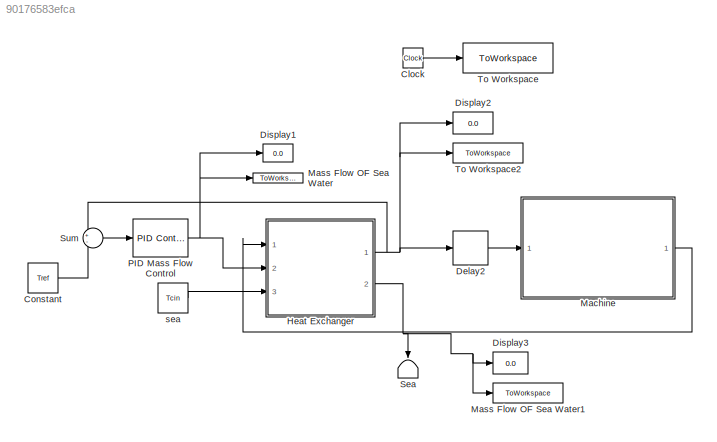
MODEL slx_90176583efca
KIND model
CONFIG AbsTol = auto
CONFIG EnableMultiTasking = off
CONFIG FixedStep = 0.01
CONFIG MaxStep = auto
CONFIG MinStep = auto
CONFIG RelTol = 1e-3
CONFIG SampleTimeConstraint = Unconstrained
CONFIG SolverName = ode4
CONFIG StartTime = 0.0
CONFIG StopTime = 1000.0
BLOCK [Clock] Clock
BLOCK [Constant] Constant
  Value = Tref
BLOCK [Delay] Delay2
  DelayLength = 1
  InitialCondition = Tenv
  InputPortMap = u0
  Ports = [1, 1]
BLOCK [Display] Display1
  Decimation = 1
  Ports = [1]
BLOCK [Display] Display2
  Decimation = 1
  Ports = [1]
BLOCK [Display] Display3
  Decimation = 1
  Ports = [1]
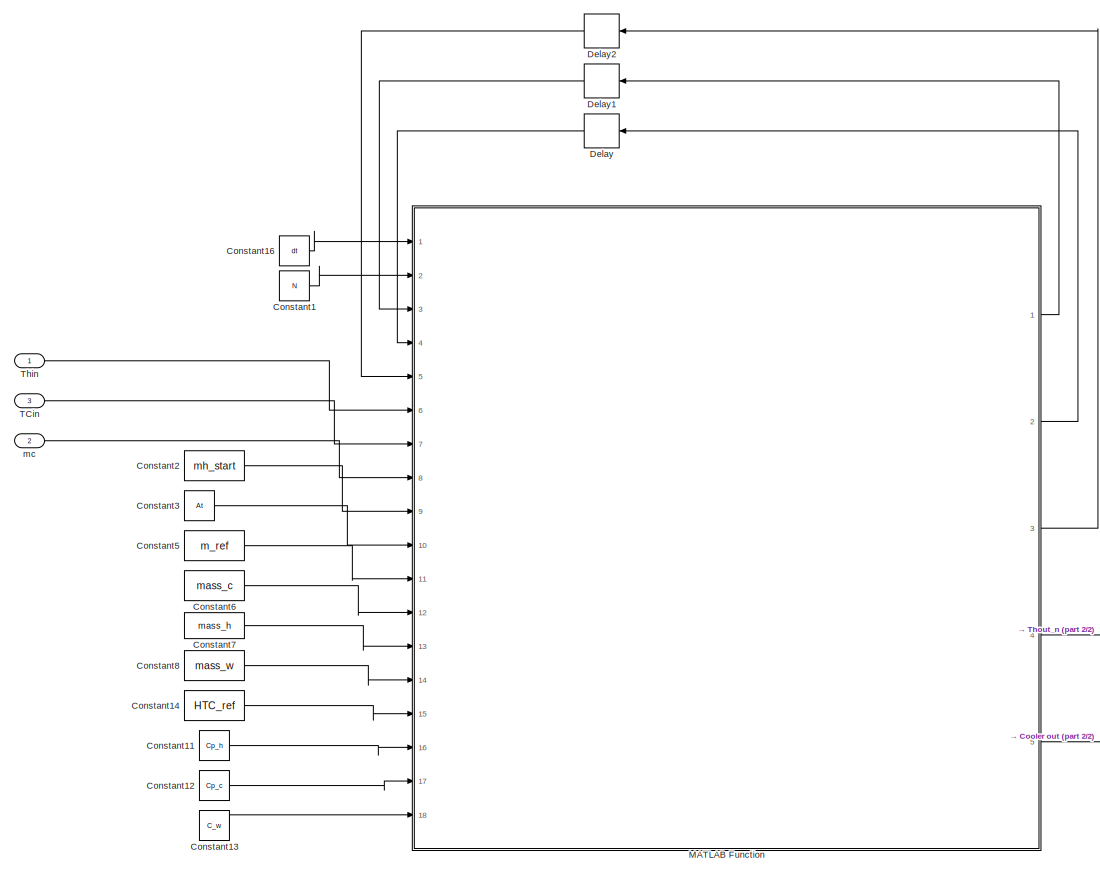
[diagram: Heat Exchanger - part 1/2, most of the canvas]
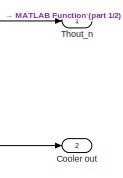
[diagram: Heat Exchanger - part 2/2, bottom right region]
BLOCK [SubSystem] Heat Exchanger
  Ports = [3, 2]
  RequestExecContextInheritance = off
BLOCK [Constant] Heat Exchanger/Constant1
  Value = N
BLOCK [Constant] Heat Exchanger/Constant11
  Value = Cp_h
BLOCK [Constant] Heat Exchanger/Constant12
  Value = Cp_c
BLOCK [Constant] Heat Exchanger/Constant13
  Value = C_w
BLOCK [Constant] Heat Exchanger/Constant14
  Value = HTC_ref
BLOCK [Constant] Heat Exchanger/Constant16
  Value = dt
BLOCK [Constant] Heat Exchanger/Constant2
  Value = mh_start
BLOCK [Constant] Heat Exchanger/Constant3
  Value = At
BLOCK [Constant] Heat Exchanger/Constant5
  Value = m_ref
BLOCK [Constant] Heat Exchanger/Constant6
  Value = mass_c
BLOCK [Constant] Heat Exchanger/Constant7
  Value = mass_h
BLOCK [Constant] Heat Exchanger/Constant8
  Value = mass_w
BLOCK [Outport] Heat Exchanger/Cooler out
  Port = 2
BLOCK [Delay] Heat Exchanger/Delay
  DelayLength = 1
  InitialCondition = Tc_init
  InputPortMap = u0
  NameLocation = top
  Ports = [1, 1]
BLOCK [Delay] Heat Exchanger/Delay1
  DelayLength = 1
  InitialCondition = Th_init
  InputPortMap = u0
  NameLocation = top
  Ports = [1, 1]
BLOCK [Delay] Heat Exchanger/Delay2
  DelayLength = 1
  InitialCondition = Tw_init
  InputPortMap = u0
  NameLocation = top
  Ports = [1, 1]
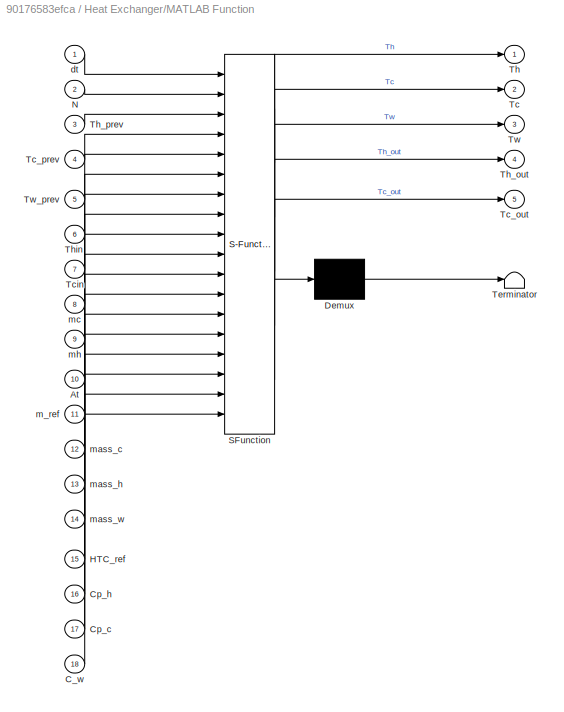
BLOCK [SubSystem] Heat Exchanger/MATLAB Function
  ErrorFcn = Stateflow.Translate.translate
  PermitHierarchicalResolution = ExplicitOnly
  Ports = [18, 5]
  RequestExecContextInheritance = off
  SFBlockType = MATLAB Function
  TreatAsAtomicUnit = on
BLOCK [Demux] Heat Exchanger/MATLAB Function/ Demux 
  Outputs = 1
  Ports = [1, 1]
BLOCK [S-Function] Heat Exchanger/MATLAB Function/ SFunction 
  EnableBusSupport = on
  FunctionName = sf_sfun
  PortCounts = [18 6]
  Ports = [18, 6]
  SFcnIsStateOwnerBlock = off
  SFunctionDeploymentMode = off
  Tag = Stateflow S-Function 2
BLOCK [Terminator] Heat Exchanger/MATLAB Function/ Terminator 
BLOCK [Inport] Heat Exchanger/MATLAB Function/At
  Port = 10
BLOCK [Inport] Heat Exchanger/MATLAB Function/C_w
  Port = 18
BLOCK [Inport] Heat Exchanger/MATLAB Function/Cp_c
  Port = 17
BLOCK [Inport] Heat Exchanger/MATLAB Function/Cp_h
  Port = 16
BLOCK [Inport] Heat Exchanger/MATLAB Function/HTC_ref
  Port = 15
BLOCK [Inport] Heat Exchanger/MATLAB Function/N
  Port = 2
BLOCK [Outport] Heat Exchanger/MATLAB Function/Tc
  Port = 2
BLOCK [Outport] Heat Exchanger/MATLAB Function/Tc_out
  Port = 5
BLOCK [Inport] Heat Exchanger/MATLAB Function/Tc_prev
  Port = 4
BLOCK [Inport] Heat Exchanger/MATLAB Function/Tcin
  Port = 7
BLOCK [Outport] Heat Exchanger/MATLAB Function/Th
BLOCK [Outport] Heat Exchanger/MATLAB Function/Th_out
  Port = 4
BLOCK [Inport] Heat Exchanger/MATLAB Function/Th_prev
  Port = 3
BLOCK [Inport] Heat Exchanger/MATLAB Function/Thin
  Port = 6
BLOCK [Outport] Heat Exchanger/MATLAB Function/Tw
  Port = 3
BLOCK [Inport] Heat Exchanger/MATLAB Function/Tw_prev
  Port = 5
BLOCK [Inport] Heat Exchanger/MATLAB Function/dt
BLOCK [Inport] Heat Exchanger/MATLAB Function/m_ref
  Port = 11
BLOCK [Inport] Heat Exchanger/MATLAB Function/mass_c
  Port = 12
BLOCK [Inport] Heat Exchanger/MATLAB Function/mass_h
  Port = 13
BLOCK [Inport] Heat Exchanger/MATLAB Function/mass_w
  Port = 14
BLOCK [Inport] Heat Exchanger/MATLAB Function/mc
  Port = 8
BLOCK [Inport] Heat Exchanger/MATLAB Function/mh
  Port = 9
BLOCK [Inport] Heat Exchanger/TCin
  Port = 3
BLOCK [Inport] Heat Exchanger/Thin
BLOCK [Outport] Heat Exchanger/Thout_n
BLOCK [Inport] Heat Exchanger/mc
  Port = 2
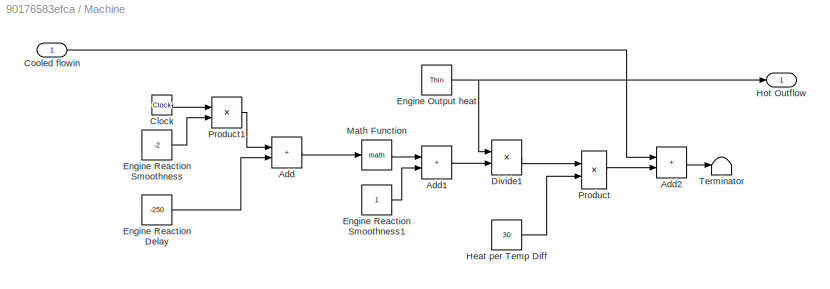
BLOCK [SubSystem] Machine
  Ports = [1, 1]
  RequestExecContextInheritance = off
BLOCK [Sum] Machine/Add
  IconShape = rectangular
  Ports = [2, 1]
BLOCK [Sum] Machine/Add1
  IconShape = rectangular
  Ports = [2, 1]
BLOCK [Sum] Machine/Add2
  IconShape = rectangular
  Ports = [2, 1]
BLOCK [Clock] Machine/Clock
BLOCK [Inport] Machine/Cooled flowin
BLOCK [Product] Machine/Divide1
  Inputs = */
  Ports = [2, 1]
BLOCK [Constant] Machine/Engine Output heat
  Value = Thin
BLOCK [Constant] Machine/Engine Reaction Delay
  Value = -250
BLOCK [Constant] Machine/Engine Reaction Smoothness
  Value = -2
BLOCK [Constant] Machine/Engine Reaction Smoothness1
BLOCK [Constant] Machine/Heat per Temp Diff
  Value = 30
BLOCK [Outport] Machine/Hot Outflow
BLOCK [Math] Machine/Math Function
  Ports = [1, 1]
BLOCK [Product] Machine/Product
  Inputs = */
  Ports = [2, 1]
BLOCK [Product] Machine/Product1
  Ports = [2, 1]
BLOCK [Terminator] Machine/Terminator
BLOCK [ToWorkspace] Mass Flow OF Sea Water
  FixptAsFi = on
  MaxDataPoints = inf
  Ports = [1]
  SampleTime = -1
  VariableName = mh_in
BLOCK [ToWorkspace] Mass Flow OF Sea Water1
  FixptAsFi = on
  MaxDataPoints = inf
  Ports = [1]
  SampleTime = -1
  VariableName = Tc_out
BLOCK [Reference] PID Mass Flow Control  REF=pid_lib/PID Controller
  Ports = [1, 1]
  SourceBlock = pid_lib/PID Controller
  SourceProductBaseCode = SL
  SourceType = PID 1dof
BLOCK [Terminator] Sea
  NameLocation = left
BLOCK [Sum] Sum
  Inputs = +-
  Ports = [2, 1]
BLOCK [ToWorkspace] To Workspace
  FixptAsFi = on
  MaxDataPoints = inf
  Ports = [1]
  SampleTime = -1
  VariableName = t
BLOCK [ToWorkspace] To Workspace2
  FixptAsFi = on
  MaxDataPoints = inf
  Ports = [1]
  SampleTime = -1
  VariableName = Th_out
BLOCK [Constant] sea
  Value = Tcin
LINE Clock:1 -> To Workspace:1
LINE Constant:1 -> Sum:2
LINE Delay2:1 -> Machine:1
LINE Heat Exchanger/Constant11:1 -> Heat Exchanger/MATLAB Function:16
LINE Heat Exchanger/Constant12:1 -> Heat Exchanger/MATLAB Function:17
LINE Heat Exchanger/Constant13:1 -> Heat Exchanger/MATLAB Function:18
LINE Heat Exchanger/Constant14:1 -> Heat Exchanger/MATLAB Function:15
LINE Heat Exchanger/Constant16:1 -> Heat Exchanger/MATLAB Function:1
LINE Heat Exchanger/Constant1:1 -> Heat Exchanger/MATLAB Function:2
LINE Heat Exchanger/Constant2:1 -> Heat Exchanger/MATLAB Function:9
LINE Heat Exchanger/Constant3:1 -> Heat Exchanger/MATLAB Function:10
LINE Heat Exchanger/Constant5:1 -> Heat Exchanger/MATLAB Function:11
LINE Heat Exchanger/Constant6:1 -> Heat Exchanger/MATLAB Function:12
LINE Heat Exchanger/Constant7:1 -> Heat Exchanger/MATLAB Function:13
LINE Heat Exchanger/Constant8:1 -> Heat Exchanger/MATLAB Function:14
LINE Heat Exchanger/Delay1:1 -> Heat Exchanger/MATLAB Function:3
LINE Heat Exchanger/Delay2:1 -> Heat Exchanger/MATLAB Function:5
LINE Heat Exchanger/Delay:1 -> Heat Exchanger/MATLAB Function:4
LINE Heat Exchanger/MATLAB Function:1 -> Heat Exchanger/Delay1:1
LINE Heat Exchanger/MATLAB Function:2 -> Heat Exchanger/Delay:1
LINE Heat Exchanger/MATLAB Function:3 -> Heat Exchanger/Delay2:1
LINE Heat Exchanger/MATLAB Function:4 -> Heat Exchanger/Thout_n:1
LINE Heat Exchanger/MATLAB Function:5 -> Heat Exchanger/Cooler out:1
LINE Heat Exchanger/TCin:1 -> Heat Exchanger/MATLAB Function:7
LINE Heat Exchanger/Thin:1 -> Heat Exchanger/MATLAB Function:6
LINE Heat Exchanger/mc:1 -> Heat Exchanger/MATLAB Function:8
NET Heat Exchanger:1 -> Delay2:1, Display2:1, Sum:1, To Workspace2:1
NET Heat Exchanger:2 -> Display3:1, Mass Flow OF Sea Water1:1, Sea:1
LINE Machine/Add1:1 -> Machine/Divide1:2
LINE Machine/Add2:1 -> Machine/Terminator:1
LINE Machine/Add:1 -> Machine/Math Function:1
LINE Machine/Clock:1 -> Machine/Product1:1
LINE Machine/Cooled flowin:1 -> Machine/Add2:1
LINE Machine/Divide1:1 -> Machine/Product:1
NET Machine/Engine Output heat:1 -> Machine/Divide1:1, Machine/Hot Outflow:1
LINE Machine/Engine Reaction Delay:1 -> Machine/Add:2
LINE Machine/Engine Reaction Smoothness1:1 -> Machine/Add1:2
LINE Machine/Engine Reaction Smoothness:1 -> Machine/Product1:2
LINE Machine/Heat per Temp Diff:1 -> Machine/Product:2
LINE Machine/Math Function:1 -> Machine/Add1:1
LINE Machine/Product1:1 -> Machine/Add:1
LINE Machine/Product:1 -> Machine/Add2:2
LINE Machine:1 -> Heat Exchanger:1
NET PID Mass Flow Control:1 -> Display1:1, Heat Exchanger:2, Mass Flow OF Sea Water:1
LINE Sum:1 -> PID Mass Flow Control:1
LINE sea:1 -> Heat Exchanger:3
note: NET lines group one-source signal fan-out (src -> all destinations, sorted); 1:1 wires keep LINE
CHART Heat Exchanger/MATLAB Function states=1 transitions=1
  STATE_LABEL 'eML_blk_kernel()'
  STATE_LABEL 'SCRIPT:\nfunction [Th, Tc, Tw,Th_out, Tc_out] = fcn(dt,N,Th_prev, Tc_prev,Tw_prev, Thin,Tcin,mc,mh,At,m_ref,mass_c,mass_h,mass_w,HTC_ref,Cp_h,Cp_c, C_w)\n%Counter flow heat exchanger with tubes inside circular section\n\n%this function is suitable for a heat exchanger system that the cold fluid\n%flows through shell and the hot fluid flows through tubes.\n%assumptions are made for this simulation:\n% - t...<+915ch>'
CHART  states=0 transitions=0
